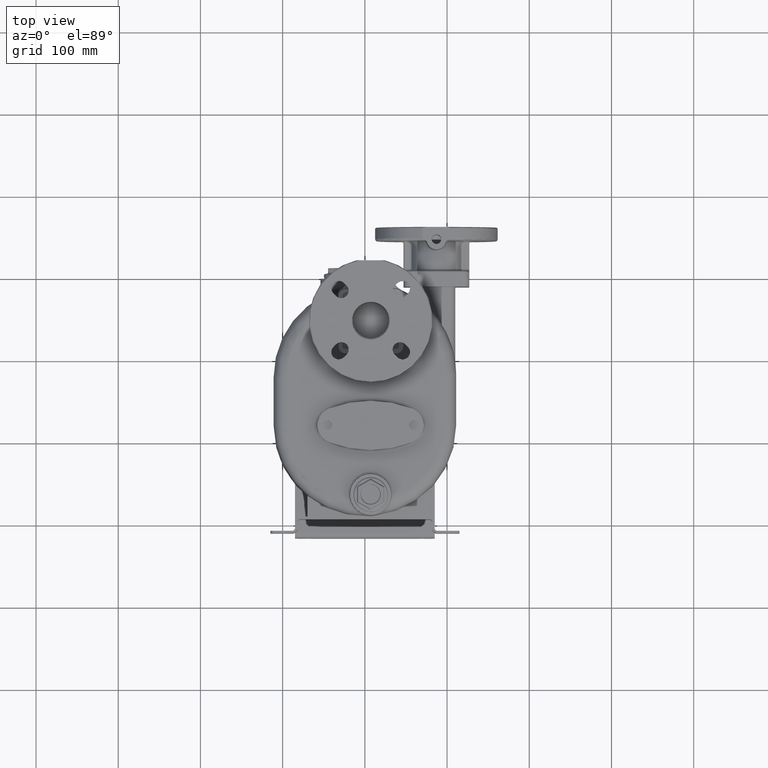
[diagram: clean part render]
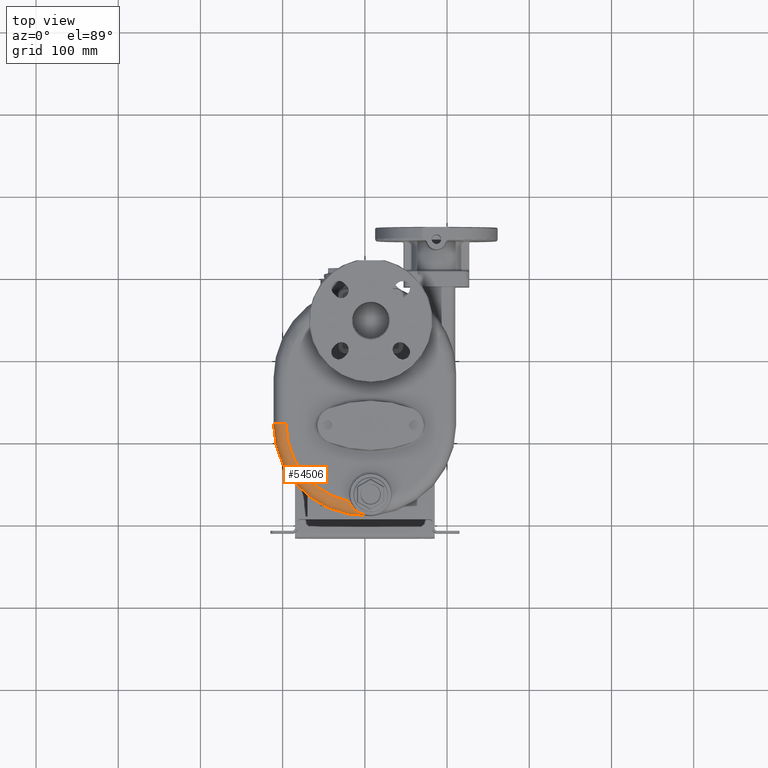
[diagram: same view with one face highlighted and labeled with its STEP entity id]
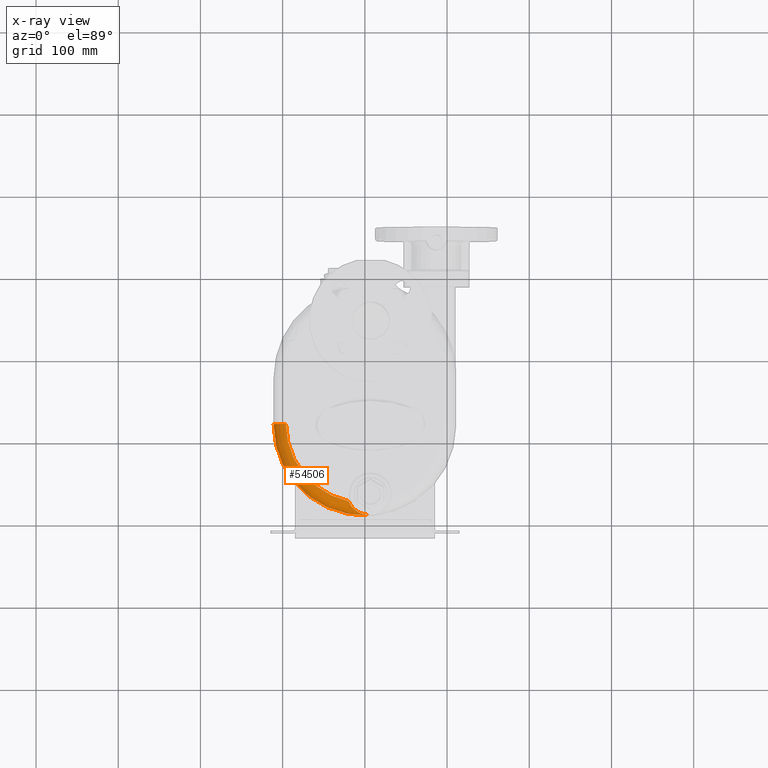
[diagram: x-ray of the same camera — body ghosted, the highlighted face saturated]
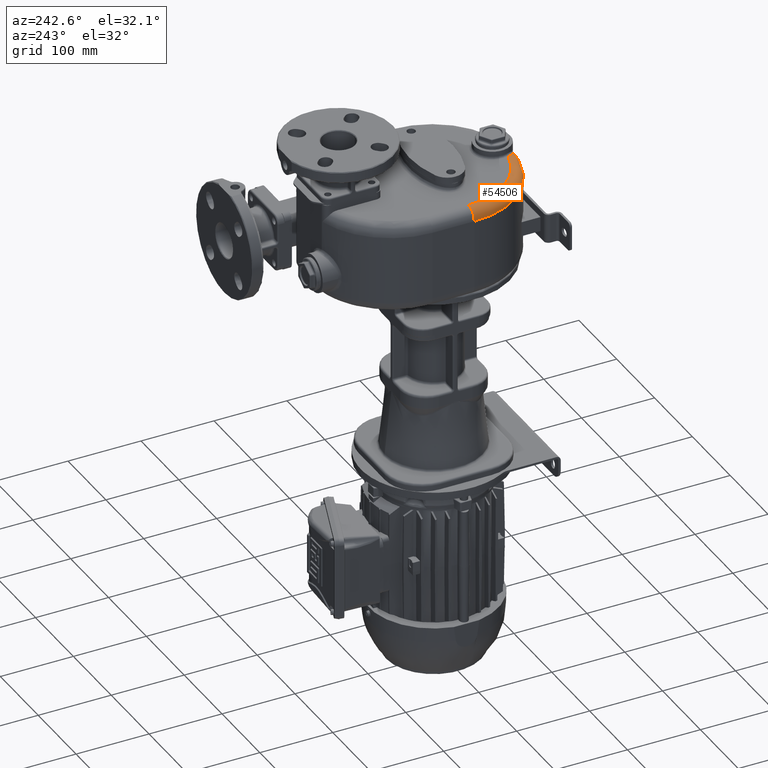
[diagram: same view with one face highlighted and labeled with its STEP entity id]
A machine part, top view. The second image highlights one B-rep face of the part: STEP entity #54506.
The next image is the same camera in x-ray: the body ghosted, the highlighted face saturated — about 0% of this face is hidden behind the body in this view.
A second angle (auxiliary view) of the same face is appended — the face is thin or edge-on in the first view.
In plain terms, the highlighted toroidal blend (fillet) surface has major radius 96 mm and minor (blend) radius 15 mm.
Its self-contained STEP definition (entity closure, byte-faithful):
#3171=CARTESIAN_POINT('',(0.E0,1.12E2,7.4E1));
#3172=DIRECTION('',(0.E0,0.E0,1.E0));
#3173=DIRECTION('',(-1.E0,0.E0,0.E0));
#3174=AXIS2_PLACEMENT_3D('',#3171,#3172,#3173);
#3532=CARTESIAN_POINT('',(0.E0,1.12E2,5.9E1));
#3533=DIRECTION('',(0.E0,0.E0,1.E0));
#3534=DIRECTION('',(-1.E0,0.E0,0.E0));
#3535=AXIS2_PLACEMENT_3D('',#3532,#3533,#3534);
#5128=CARTESIAN_POINT('',(4.558222339772E0,1.093646326384E0,5.899999999683E1));
#5129=CARTESIAN_POINT('',(4.558109666710E0,1.093645443167E0,5.903516390582E1));
#5130=CARTESIAN_POINT('',(4.554375527491E0,1.093712664028E0,5.910585212802E1));
#5131=CARTESIAN_POINT('',(4.544375485974E0,1.094444736616E0,5.921261581553E1));
#5132=CARTESIAN_POINT('',(4.526580419853E0,1.095643724331E0,5.932127580690E1));
#5133=CARTESIAN_POINT('',(4.501196089746E0,1.097400122014E0,5.943245064643E1));
#5134=CARTESIAN_POINT('',(4.467045887852E0,1.099744455395E0,5.954672512987E1));
#5135=CARTESIAN_POINT('',(4.423545842997E0,1.102752768761E0,5.966450182566E1));
#5136=CARTESIAN_POINT('',(4.369759807809E0,1.106536544096E0,5.978695512326E1));
#5137=CARTESIAN_POINT('',(4.302648045104E0,1.111378562668E0,5.991863313025E1));
#5138=CARTESIAN_POINT('',(4.218157070819E0,1.117684533036E0,6.006353441733E1));
#5139=CARTESIAN_POINT('',(4.114368699312E0,1.125796565850E0,6.022129492605E1));
#5140=CARTESIAN_POINT('',(3.990609453592E0,1.135941442840E0,6.038966079280E1));
#5141=CARTESIAN_POINT('',(3.843495384098E0,1.148617011430E0,6.057049508462E1));
#5142=CARTESIAN_POINT('',(3.669114768960E0,1.164545967974E0,6.076629395225E1));
#5143=CARTESIAN_POINT('',(3.464039655399E0,1.184640274317E0,6.097917903196E1));
#5144=CARTESIAN_POINT('',(3.224018998522E0,1.209883076884E0,6.121034358513E1));
#5145=CARTESIAN_POINT('',(2.945644411447E0,1.241556900750E0,6.146132932017E1));
#5146=CARTESIAN_POINT('',(2.625632696241E0,1.281226102266E0,6.173373164180E1));
#5147=CARTESIAN_POINT('',(2.258629715282E0,1.330891140225E0,6.202992366742E1));
#5148=CARTESIAN_POINT('',(1.840276345668E0,1.393127801764E0,6.235266244673E1));
#5149=CARTESIAN_POINT('',(1.363643995873E0,1.471243058738E0,6.270542913802E1));
#5150=CARTESIAN_POINT('',(8.217885811719E-1,1.569569922772E0,6.309243958759E1));
#5151=CARTESIAN_POINT('',(2.067237698220E-1,1.693554930227E0,6.351782750994E1));
#5152=CARTESIAN_POINT('',(-4.921266148254E-1,1.850491550237E0,
6.398777318508E1));
#5153=CARTESIAN_POINT('',(-1.299722093649E0,2.053820743384E0,6.451711548714E1));
#5154=CARTESIAN_POINT('',(-2.186357343773E0,2.305309164020E0,6.508490601498E1));
#5155=CARTESIAN_POINT('',(-3.101531710496E0,2.597051065920E0,6.565936924102E1));
#5156=CARTESIAN_POINT('',(-3.993962241456E0,2.913645827058E0,6.621031164502E1));
#5157=CARTESIAN_POINT('',(-4.875124901900E0,3.258188471281E0,6.674656993093E1));
#5158=CARTESIAN_POINT('',(-5.742156258984E0,3.629810174473E0,6.726735590007E1));
#5159=CARTESIAN_POINT('',(-6.589331033677E0,4.025595219076E0,6.777004177829E1));
#5160=CARTESIAN_POINT('',(-7.415649359446E0,4.444320079709E0,6.825458452284E1));
#5161=CARTESIAN_POINT('',(-8.219836079150E0,4.884603867434E0,6.872068390750E1));
#5162=CARTESIAN_POINT('',(-9.000526857096E0,5.344790938057E0,6.916780649495E1));
#5163=CARTESIAN_POINT('',(-9.756541524794E0,5.823213197602E0,6.959551445712E1));
#5164=CARTESIAN_POINT('',(-1.048711075603E1,6.318282577911E0,7.000350376933E1));
#5165=CARTESIAN_POINT('',(-1.119154427958E1,6.828357798489E0,7.039148020803E1));
#5166=CARTESIAN_POINT('',(-1.186934445168E1,7.351861435885E0,7.075925351473E1));
#5167=CARTESIAN_POINT('',(-1.252013888038E1,7.887164488044E0,7.110663302950E1));
#5168=CARTESIAN_POINT('',(-1.314366122419E1,8.432667537810E0,7.143350313669E1));
#5169=CARTESIAN_POINT('',(-1.373986936416E1,8.986913448833E0,7.173986886508E1));
#5170=CARTESIAN_POINT('',(-1.430880624192E1,9.548411502810E0,7.202573425666E1));
#5171=CARTESIAN_POINT('',(-1.485057895429E1,1.011570714669E1,7.229115983699E1));
#5172=CARTESIAN_POINT('',(-1.536549965758E1,1.068756621728E1,7.253633050093E1));
#5173=CARTESIAN_POINT('',(-1.585395334228E1,1.126274376120E1,7.276142506826E1));
#5174=CARTESIAN_POINT('',(-1.631638405673E1,1.184006100135E1,7.296666219006E1));
#5175=CARTESIAN_POINT('',(-1.675328321513E1,1.241843311329E1,7.315230502308E1));
#5176=CARTESIAN_POINT('',(-1.716520882045E1,1.299692005857E1,7.331866323435E1));
#5177=CARTESIAN_POINT('',(-1.755275734250E1,1.357449778155E1,7.346601632261E1));
#5178=CARTESIAN_POINT('',(-1.791655671576E1,1.415025115964E1,7.359468621800E1));
#5179=CARTESIAN_POINT('',(-1.825725714688E1,1.472339423966E1,7.370502834271E1));
#5180=CARTESIAN_POINT('',(-1.857558792737E1,1.529333358758E1,7.379742363094E1));
#5181=CARTESIAN_POINT('',(-1.887232565443E1,1.585943269281E1,7.387222672912E1));
#5182=CARTESIAN_POINT('',(-1.914822491976E1,1.642119521376E1,7.392980578356E1));
#5183=CARTESIAN_POINT('',(-1.940401132880E1,1.697827701764E1,7.397051848075E1));
#5184=CARTESIAN_POINT('',(-1.964041549998E1,1.753023538529E1,7.399469897908E1));
#5185=CARTESIAN_POINT('',(-1.978567909966E1,1.789459046853E1,7.399999342684E1));
#5186=CARTESIAN_POINT('',(-1.985527873442E1,1.807573326154E1,7.399999609717E1));
#5188=CARTESIAN_POINT('',(-9.6E1,1.12E2,5.9E1));
#5189=DIRECTION('',(0.E0,-1.E0,0.E0));
#5190=DIRECTION('',(0.E0,0.E0,1.E0));
#5191=AXIS2_PLACEMENT_3D('',#5188,#5189,#5190);
#42179=CARTESIAN_POINT('',(-9.6E1,1.12E2,7.4E1));
#42181=VERTEX_POINT('',#42179);
#42183=CARTESIAN_POINT('',(-1.11E2,1.12E2,5.9E1));
#42185=VERTEX_POINT('',#42183);
#42238=VERTEX_POINT('',#5128);
#42239=VERTEX_POINT('',#5186);
#54494=CARTESIAN_POINT('',(0.E0,1.12E2,5.9E1));
#54495=DIRECTION('',(0.E0,0.E0,-1.E0));
#54496=DIRECTION('',(-9.999722327207E-1,7.452099538963E-3,0.E0));
#54497=AXIS2_PLACEMENT_3D('',#54494,#54495,#54496);
#54498=TOROIDAL_SURFACE('',#54497,9.6E1,1.5E1);
#54500=ORIENTED_EDGE('',*,*,#54499,.F.);
#54501=ORIENTED_EDGE('',*,*,#52359,.F.);
#54502=ORIENTED_EDGE('',*,*,#54487,.F.);
#54503=ORIENTED_EDGE('',*,*,#52090,.T.);
#54504=EDGE_LOOP('',(#54500,#54501,#54502,#54503));
#54505=FACE_OUTER_BOUND('',#54504,.F.);
#54506=ADVANCED_FACE('',(#54505),#54498,.T.);
#3175=CIRCLE('',#3174,9.6E1);
#3536=CIRCLE('',#3535,1.11E2);
#5187=B_SPLINE_CURVE_WITH_KNOTS('',3,(#5128,#5129,#5130,#5131,#5132,#5133,#5134,
#5135,#5136,#5137,#5138,#5139,#5140,#5141,#5142,#5143,#5144,#5145,#5146,#5147,
#5148,#5149,#5150,#5151,#5152,#5153,#5154,#5155,#5156,#5157,#5158,#5159,#5160,
#5161,#5162,#5163,#5164,#5165,#5166,#5167,#5168,#5169,#5170,#5171,#5172,#5173,
#5174,#5175,#5176,#5177,#5178,#5179,#5180,#5181,#5182,#5183,#5184,#5185,#5186),
.UNSPECIFIED.,.F.,.F.,(4,1,1,1,1,1,1,1,1,1,1,1,1,1,1,1,1,1,1,1,1,1,1,1,1,1,1,1,
1,1,1,1,1,1,1,1,1,1,1,1,1,1,1,1,1,1,1,1,1,1,1,1,1,1,1,1,4),(0.E0,
1.785714285714E-2,3.571428571429E-2,5.357142857143E-2,7.142857142857E-2,
8.928571428571E-2,1.071428571429E-1,1.25E-1,1.428571428571E-1,1.607142857143E-1,
1.785714285714E-1,1.964285714286E-1,2.142857142857E-1,2.321428571429E-1,2.5E-1,
2.678571428571E-1,2.857142857143E-1,3.035714285714E-1,3.214285714286E-1,
3.392857142857E-1,3.571428571429E-1,3.75E-1,3.928571428571E-1,4.107142857143E-1,
4.285714285714E-1,4.464285714286E-1,4.642857142857E-1,4.821428571429E-1,5.E-1,
5.178571428571E-1,5.357142857143E-1,5.535714285714E-1,5.714285714286E-1,
5.892857142857E-1,6.071428571429E-1,6.25E-1,6.428571428571E-1,6.607142857143E-1,
6.785714285714E-1,6.964285714286E-1,7.142857142857E-1,7.321428571429E-1,7.5E-1,
7.678571428571E-1,7.857142857143E-1,8.035714285714E-1,8.214285714286E-1,
8.392857142857E-1,8.571428571429E-1,8.75E-1,8.928571428571E-1,9.107142857143E-1,
9.285714285714E-1,9.464285714286E-1,9.642857142857E-1,9.821428571429E-1,1.E0),
.UNSPECIFIED.);
#5192=CIRCLE('',#5191,1.5E1);
#52090=EDGE_CURVE('',#42181,#42239,#3175,.T.);
#52359=EDGE_CURVE('',#42185,#42238,#3536,.T.);
#54487=EDGE_CURVE('',#42181,#42185,#5192,.T.);
#54499=EDGE_CURVE('',#42238,#42239,#5187,.T.);